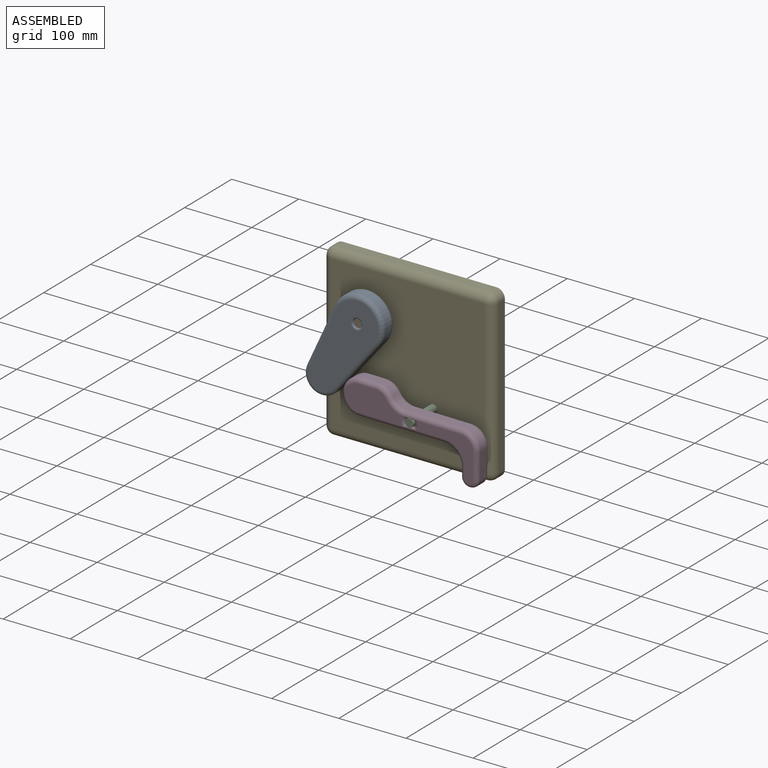
[diagram: assembled view]
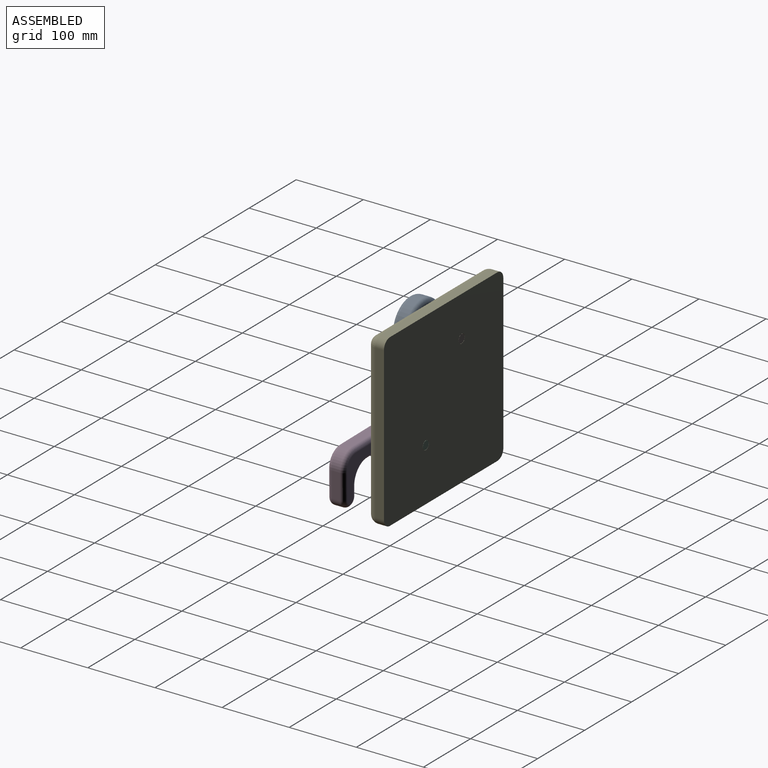
[diagram: assembled view, second angle]
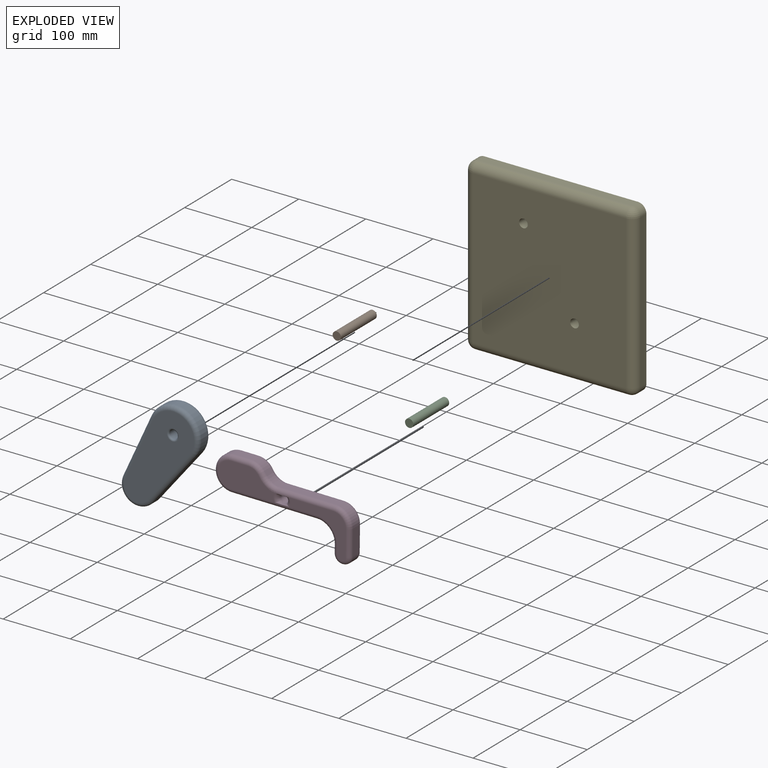
[diagram: exploded view]
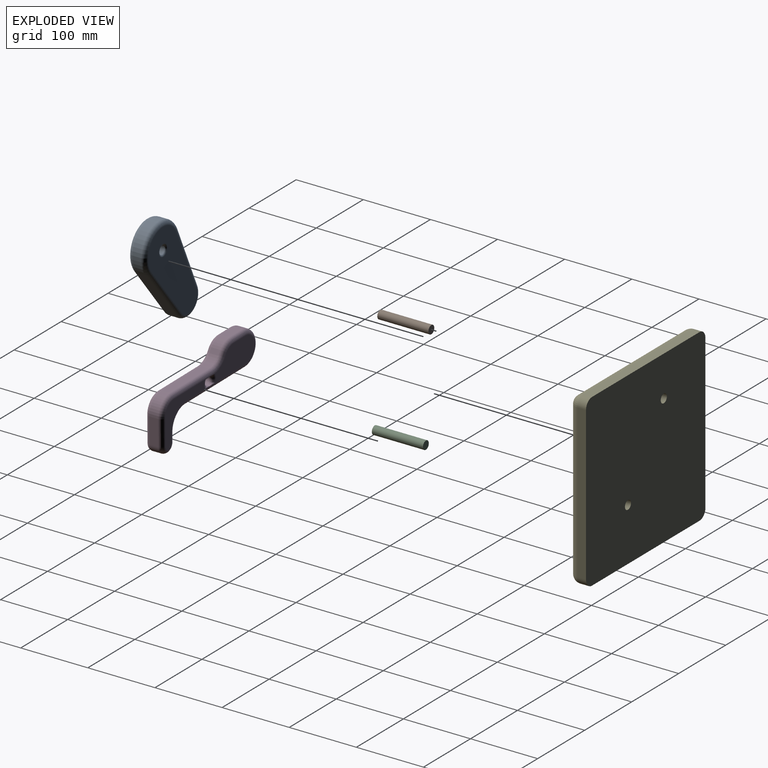
[diagram: exploded view, second angle]
ASSEMBLY  parts=5 mates=4
PART A: 17 faces, bbox 170.3x25.4x82.5 mm
  f0: plane 100.01x12.7mm, normal (0.12,0,0.99), area 1280.2mm2, adj f1,f3,f7,f11
  f1: cylinder r=38.1mm len=76.2mm, axis (0,1,0), area 1641.4mm2, adj f0,f2,f8,f12
  f2: plane 100.01x12.7mm, normal (0.12,0,-0.99), area 1280.2mm2, adj f1,f3,f10,f14
  f3: cylinder r=25.4mm len=50.4mm, axis (0,1,0), area 932.6mm2, adj f0,f2,f9,f13
  f4: cylinder r=6.35mm len=20.32mm, axis (0,1,0), area 810.7mm2, adj f15,f16
  f5: plane 152.4x63.5mm, normal (0,-1,0), area 7106.9mm2, adj f11,f12,f13,f14,f16
  f6: plane 152.4x63.5mm, normal (0,1,0), area 7106.9mm2, adj f7,f8,f9,f10,f15
  f7: cylinder r=6.35mm len=100.81mm, axis (-0.99,0,0.12), area 1005.5mm2, adj f0,f6,f8,f9
  f8: torus R=31.75mm, axis (0,-1,0), area 1211.1mm2, adj f1,f6,f7,f10
  f9: torus R=19.05mm, axis (0,-1,0), area 665.9mm2, adj f3,f6,f7,f10
  f10: cylinder r=6.35mm len=100.81mm, axis (0.99,0,0.12), area 1005.5mm2, adj f2,f6,f8,f9
  f11: cylinder r=6.35mm len=100.81mm, axis (0.99,0,-0.12), area 1005.5mm2, adj f0,f5,f12,f13
  f12: torus R=31.75mm, axis (0,-1,0), area 1211.1mm2, adj f1,f5,f11,f14
  f13: torus R=19.05mm, axis (0,-1,0), area 665.9mm2, adj f3,f5,f11,f14
  f14: cylinder r=6.35mm len=100.81mm, axis (-0.99,0,-0.12), area 1005.5mm2, adj f2,f5,f12,f13
  f15: torus R=8.89mm, axis (0,-1,0), area 182.3mm2, adj f4,f6
  f16: torus R=8.89mm, axis (0,-1,0), area 182.3mm2, adj f4,f5
PART B: 3 faces, bbox 12.4x76.2x12.4 mm
  f0: cylinder r=6.22mm len=76.2mm, axis (0,1,0), area 2979.4mm2, adj f1,f2
  f1: plane 12.45x12.45mm, normal (0,-1,0), area 121.7mm2, adj f0
  f2: plane 12.45x12.45mm, normal (0,1,0), area 121.7mm2, adj f0
PART C: same geometry as B
PART D: 52 faces, bbox 207.4x26x104.7 mm
  f0: plane 84.4x38.1mm, normal (0,-1,0), area 2528.6mm2, adj f29,f31,f33,f35,f37,f39
  f1: plane 84.25x63.5mm, normal (0,1,0), area 1821.7mm2, adj f16,f17,f19,f21,f23,f25,f26,f47
  f2: plane 83.01x12.7mm, normal (0,0,1), area 1054.2mm2, adj f13,f15,f16,f27
  f3: plane 38.1x12.7mm, normal (1,0,0), area 483.9mm2, adj f12,f13,f19,f30
  f4: plane 127x12.7mm, normal (0,0,-1), area 1612.9mm2, adj f9,f14,f26,f37
  f5: cylinder r=6.35mm len=25.4mm, axis (0,1,0), area 636.8mm2, adj f38,f39,f40,f41,f42,f43,f44,f45
  f6: plane 84.25x63.5mm, normal (0,-1,0), area 1821.7mm2, adj f27,f28,f30,f32,f34,f36,f37,f50
  f7: plane 84.4x38.1mm, normal (0,1,0), area 2528.6mm2, adj f18,f20,f22,f24,f26,f43
  f8: plane 25.4x12.7mm, normal (0,0,1), area 322.6mm2, adj f9,f10,f22,f33
  f9: cylinder r=25.4mm len=50.8mm, axis (0,1,0), area 1013.4mm2, adj f4,f8,f24,f35
  f10: cylinder r=25.4mm len=22mm, axis (0,1,0), area 337.8mm2, adj f8,f15,f20,f31
  f11: plane 12.7x12.7mm, normal (-1,0,0), area 161.3mm2, adj f12,f14,f23,f34
  f12: cylinder r=12.7mm len=25.4mm, axis (0,1,0), area 506.7mm2, adj f3,f11,f21,f32
  f13: cylinder r=25.4mm len=25.4mm, axis (0,-1,0), area 506.7mm2, adj f2,f3,f17,f28
  f14: cylinder r=25.4mm len=25.4mm, axis (0,1,0), area 506.7mm2, adj f4,f11,f25,f36
  f15: cylinder r=25.4mm len=22mm, axis (0,1,0), area 337.8mm2, adj f2,f10,f18,f29
  f16: cylinder r=6.35mm len=83.01mm, axis (-1,0,0), area 827.9mm2, adj f1,f2,f17,f18,f45,f46
  f17: torus R=19.05mm, axis (0,-1,0), area 361.8mm2, adj f1,f13,f16,f19
  f18: torus R=31.75mm, axis (0,-1,0), area 289.4mm2, adj f7,f15,f16,f20,f44
  f19: cylinder r=6.35mm len=38.1mm, axis (0,0,1), area 380mm2, adj f1,f3,f17,f21
  f20: torus R=19.05mm, axis (0,-1,0), area 241.2mm2, adj f7,f10,f18,f22
  f21: torus R=6.35mm, axis (0,-1,0), area 325.7mm2, adj f1,f12,f19,f23
  f22: cylinder r=6.35mm len=25.4mm, axis (-1,0,0), area 253.4mm2, adj f7,f8,f20,f24
  f23: cylinder r=6.35mm len=12.7mm, axis (0,0,-1), area 126.7mm2, adj f1,f11,f21,f25
  f24: torus R=19.05mm, axis (0,-1,0), area 723.6mm2, adj f7,f9,f22,f26
  f25: torus R=31.75mm, axis (0,-1,0), area 434.1mm2, adj f1,f14,f23,f26
  f26: cylinder r=6.35mm len=127mm, axis (1,0,0), area 1266.8mm2, adj f1,f4,f7,f24,f25,f42,f48
  f27: cylinder r=6.35mm len=83.01mm, axis (1,0,0), area 827.9mm2, adj f2,f6,f28,f29,f41,f49
  f28: torus R=19.05mm, axis (0,-1,0), area 361.8mm2, adj f6,f13,f27,f30
  f29: torus R=31.75mm, axis (0,-1,0), area 289.4mm2, adj f0,f15,f27,f31,f40
  f30: cylinder r=6.35mm len=38.1mm, axis (0,0,-1), area 380mm2, adj f3,f6,f28,f32
  f31: torus R=19.05mm, axis (0,-1,0), area 241.2mm2, adj f0,f10,f29,f33
  f32: torus R=6.35mm, axis (0,-1,0), area 325.7mm2, adj f6,f12,f30,f34
  f33: cylinder r=6.35mm len=25.4mm, axis (1,0,0), area 253.4mm2, adj f0,f8,f31,f35
  f34: cylinder r=6.35mm len=12.7mm, axis (0,0,1), area 126.7mm2, adj f6,f11,f32,f36
  f35: torus R=19.05mm, axis (0,-1,0), area 723.6mm2, adj f0,f9,f33,f37
  f36: torus R=31.75mm, axis (0,-1,0), area 434.1mm2, adj f6,f14,f34,f37
  f37: cylinder r=6.35mm len=127mm, axis (-1,0,0), area 1266.8mm2, adj f0,f4,f6,f35,f36,f38,f51
  f38: bspline ~11.38x6.67mm, area 35.8mm2, adj f5,f37,f39
  f39: torus R=12.7mm, axis (0,-1,0), area 92.5mm2, adj f0,f5,f38,f40
  f40: bspline ~7.67x6.4mm, area 18.4mm2, adj f5,f29,f39,f41
  f41: bspline ~7.6x5.07mm, area 14.2mm2, adj f5,f27,f40
  f42: bspline ~11.38x6.67mm, area 35.8mm2, adj f5,f26,f43
  f43: torus R=12.7mm, axis (0,-1,0), area 92.5mm2, adj f5,f7,f42,f44
  f44: bspline ~7.44x6.35mm, area 18.5mm2, adj f5,f18,f43,f45
  f45: bspline ~7.6x5.07mm, area 14.4mm2, adj f5,f16,f44
  f46: bspline ~11.38x6.67mm, area 35.8mm2, adj f5,f16,f47
  f47: torus R=12.7mm, axis (0,-1,0), area 90.4mm2, adj f1,f5,f46,f48
  f48: bspline ~11.38x6.67mm, area 35.8mm2, adj f5,f26,f47
  f49: bspline ~11.38x6.67mm, area 35.8mm2, adj f5,f27,f50
  f50: torus R=12.7mm, axis (0,-1,0), area 90.4mm2, adj f5,f6,f49,f51
  f51: bspline ~11.38x6.67mm, area 35.8mm2, adj f5,f37,f50
PART E: 20 faces, bbox 254x25.4x254 mm
  f0: plane 228.6x12.7mm, normal (0,0,1), area 2903.2mm2, adj f5,f8,f14,f17
  f1: plane 228.6x12.7mm, normal (-1,0,0), area 2903.2mm2, adj f5,f11,f15,f17
  f2: plane 228.6x12.7mm, normal (0,0,-1), area 2903.2mm2, adj f5,f6,f10,f11
  f3: plane 228.6x12.7mm, normal (1,0,0), area 2903.2mm2, adj f5,f6,f8,f9
  f4: plane 228.6x228.6mm, normal (0,-1,0), area 51994.4mm2, adj f9,f10,f14,f15,f18,f19
  f5: plane 254x254mm, normal (0,1,0), area 64114mm2, adj f0,f1,f2,f3,f6,f8,f11,f17
  f6: cylinder r=12.7mm len=12.7mm, axis (0,-1,0), area 253.4mm2, adj f2,f3,f5,f7
  f7: sphere r=12.7mm, area 253.4mm2, adj f6,f9,f10
  f8: cylinder r=12.7mm len=12.7mm, axis (0,1,0), area 253.4mm2, adj f0,f3,f5,f12
  f9: cylinder r=12.7mm len=228.6mm, axis (0,0,-1), area 4560.4mm2, adj f3,f4,f7,f12
  f10: cylinder r=12.7mm len=228.6mm, axis (-1,0,0), area 4560.4mm2, adj f2,f4,f7,f13
  f11: cylinder r=12.7mm len=12.7mm, axis (0,1,0), area 253.4mm2, adj f1,f2,f5,f13
  f12: sphere r=12.7mm, area 253.4mm2, adj f8,f9,f14
  f13: sphere r=12.7mm, area 253.4mm2, adj f10,f11,f15
  f14: cylinder r=12.7mm len=228.6mm, axis (1,0,0), area 4560.4mm2, adj f0,f4,f12,f16
  f15: cylinder r=12.7mm len=228.6mm, axis (0,0,1), area 4560.4mm2, adj f1,f4,f13,f16
  f16: sphere r=12.7mm, area 253.4mm2, adj f14,f15,f17
  f17: cylinder r=12.7mm len=12.7mm, axis (0,-1,0), area 253.4mm2, adj f0,f1,f5,f16
  f18: cylinder r=6.48mm len=25.4mm, axis (0,-1,0), area 1033.7mm2, adj f4,f5
  f19: cylinder r=6.48mm len=25.4mm, axis (0,-1,0), area 1033.7mm2, adj f4,f5
PLACE A rot(axis=(0,1,0),121.8deg) t=(-18.69,20.55,-9.35)mm
PLACE B t=(10.1,73.89,35.09)mm
PLACE C t=(86.3,73.89,-79.21)mm
PLACE D rot(axis=(0,1,0),0.6deg) t=(86.3,23.25,-79.21)mm
PLACE E t=(47.79,73.89,-27.55)mm fixed
MATE revolute A.f1 <-> B.f0  axis (0,1,0) through (10.1,-2.31,35.09)mm
MATE fastened C.f0 <-> E.f19  axis (0,1,0) through (86.3,73.89,-79.21)mm
MATE fastened B.f0 <-> E.f18  axis (0,1,0) through (10.1,73.89,35.09)mm
MATE revolute D.f5 <-> C.f0  axis (0,1,0) through (86.3,-2.31,-79.21)mm
